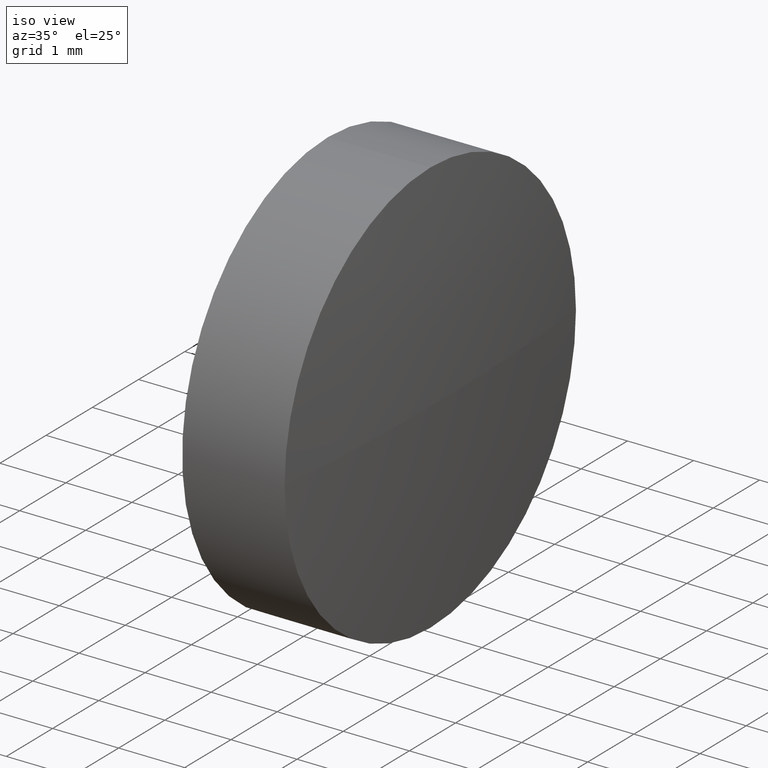
[diagram: clean part render]
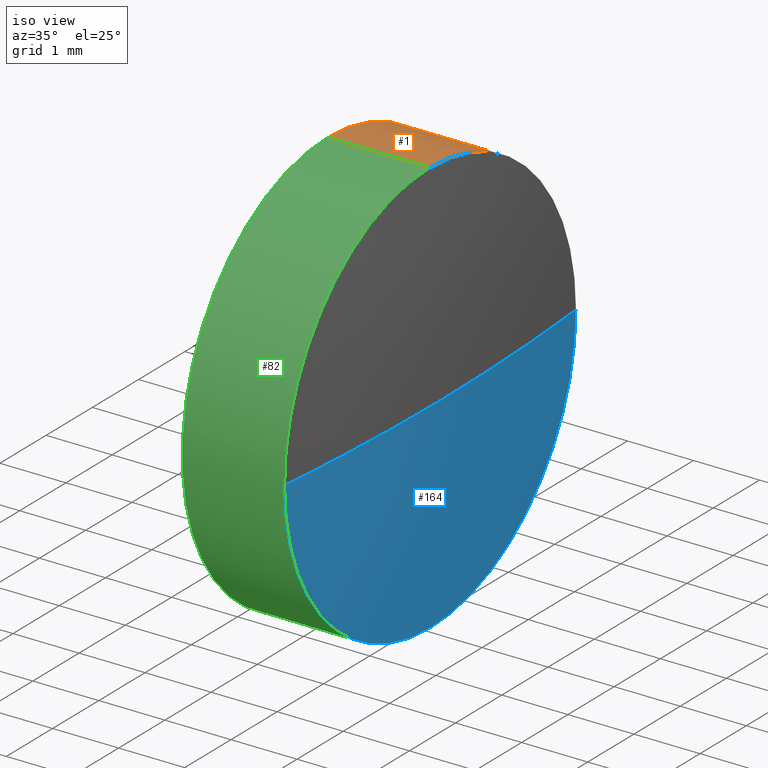
[diagram: same view with three faces highlighted in distinct colors, each labeled with its STEP entity id]
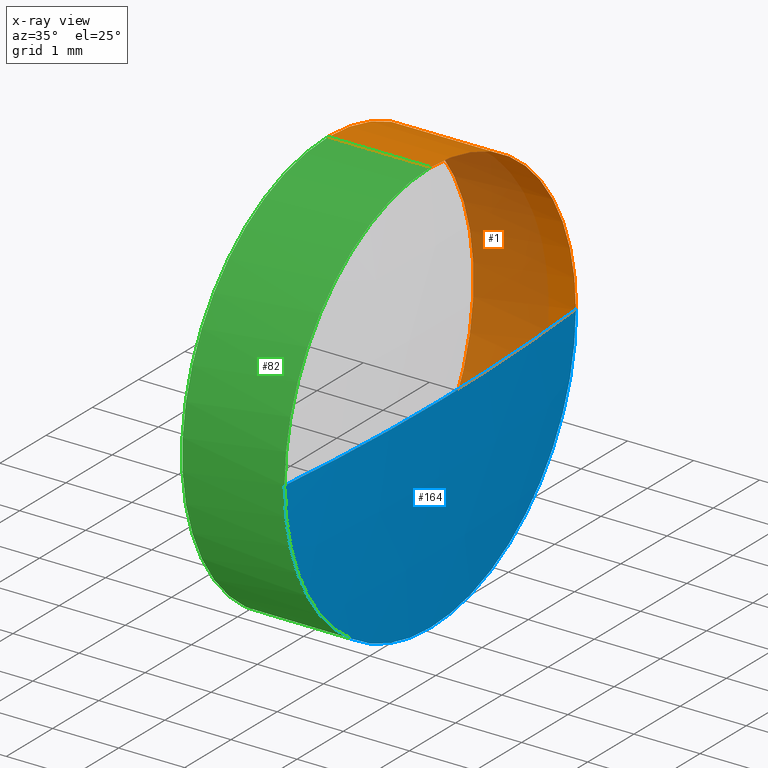
[diagram: x-ray of the same camera — body ghosted, the three highlighted faces saturated]
A machine part, iso view with three faces highlighted in distinct colors.
The next image is the same camera in x-ray (body ghosted, the three faces saturated) — at least one of them is partly hidden behind the body in this view.
Their STEP definitions:

[orange] entity #1 — the highlighted cylindrical surface (partial cylindrical patch) has radius 3.15 mm, axis along (-1, -0, -0).
#1 = ADVANCED_FACE ( 'NONE', ( #99 ), #119, .T. ) ;
#6 = DIRECTION ( 'NONE',  ( -1.000000000000000000, -0.0000000000000000000, -0.0000000000000000000 ) ) ;
#7 = DIRECTION ( 'NONE',  ( -1.000000000000000000, -0.0000000000000000000, -0.0000000000000000000 ) ) ;
#11 = EDGE_CURVE ( 'NONE', #18, #165, #87, .T. ) ;
#15 = EDGE_LOOP ( 'NONE', ( #143, #108, #184, #157, #67 ) ) ;
#16 = CARTESIAN_POINT ( 'NONE',  ( 1118.311526673283900, 408.8643062217863600, -3.149999999999986100 ) ) ;
#18 = VERTEX_POINT ( 'NONE', #19 ) ;
#19 = CARTESIAN_POINT ( 'NONE',  ( 1116.761526673283900, 408.8643062217863600, 3.149999999999986100 ) ) ;
#23 = DIRECTION ( 'NONE',  ( 0.0000000000000000000, 0.0000000000000000000, 1.000000000000000000 ) ) ;
#26 = VERTEX_POINT ( 'NONE', #16 ) ;
#27 = VECTOR ( 'NONE', #7, 1000.000000000000000 ) ;
#28 = EDGE_CURVE ( 'NONE', #96, #18, #72, .T. ) ;
#30 = CIRCLE ( 'NONE', #81, 3.149999999999986100 ) ;
#31 = EDGE_CURVE ( 'NONE', #96, #170, #152, .T. ) ;
#37 = VECTOR ( 'NONE', #6, 1000.000000000000000 ) ;
#50 = LINE ( 'NONE', #101, #27 ) ;
#51 = DIRECTION ( 'NONE',  ( 0.0000000000000000000, 0.0000000000000000000, 1.000000000000000000 ) ) ;
#53 = DIRECTION ( 'NONE',  ( 0.0000000000000000000, 0.0000000000000000000, 1.000000000000000000 ) ) ;
#66 = DIRECTION ( 'NONE',  ( -1.000000000000000000, -0.0000000000000000000, -0.0000000000000000000 ) ) ;
#67 = ORIENTED_EDGE ( 'NONE', *, *, #31, .T. ) ;
#72 = LINE ( 'NONE', #168, #37 ) ;
#81 = AXIS2_PLACEMENT_3D ( 'NONE', #172, #102, #23 ) ;
#83 = DIRECTION ( 'NONE',  ( -1.000000000000000000, -0.0000000000000000000, -0.0000000000000000000 ) ) ;
#87 = CIRCLE ( 'NONE', #93, 3.149999999999986100 ) ;
#93 = AXIS2_PLACEMENT_3D ( 'NONE', #136, #83, #123 ) ;
#96 = VERTEX_POINT ( 'NONE', #112 ) ;
#98 = CARTESIAN_POINT ( 'NONE',  ( 1116.271868689690100, 408.8643062217863600, 0.0000000000000000000 ) ) ;
#99 = FACE_OUTER_BOUND ( 'NONE', #15, .T. ) ;
#100 = EDGE_CURVE ( 'NONE', #170, #26, #30, .T. ) ;
#101 = CARTESIAN_POINT ( 'NONE',  ( 1116.271868689690100, 408.8643062217863600, -3.149999999999986100 ) ) ;
#102 = DIRECTION ( 'NONE',  ( -1.000000000000000000, -0.0000000000000000000, -0.0000000000000000000 ) ) ;
#108 = ORIENTED_EDGE ( 'NONE', *, *, #161, .T. ) ;
#110 = CARTESIAN_POINT ( 'NONE',  ( 1118.311526673283900, 412.0143062217863400, 0.0000000000000000000 ) ) ;
#112 = CARTESIAN_POINT ( 'NONE',  ( 1118.311526673283900, 408.8643062217863600, 3.149999999999986100 ) ) ;
#119 = CYLINDRICAL_SURFACE ( 'NONE', #169, 3.149999999999986100 ) ;
#121 = AXIS2_PLACEMENT_3D ( 'NONE', #171, #154, #53 ) ;
#123 = DIRECTION ( 'NONE',  ( 0.0000000000000000000, 0.0000000000000000000, 1.000000000000000000 ) ) ;
#136 = CARTESIAN_POINT ( 'NONE',  ( 1116.761526673283900, 408.8643062217863600, 0.0000000000000000000 ) ) ;
#143 = ORIENTED_EDGE ( 'NONE', *, *, #100, .T. ) ;
#152 = CIRCLE ( 'NONE', #121, 3.149999999999986100 ) ;
#154 = DIRECTION ( 'NONE',  ( -1.000000000000000000, -0.0000000000000000000, -0.0000000000000000000 ) ) ;
#157 = ORIENTED_EDGE ( 'NONE', *, *, #28, .F. ) ;
#161 = EDGE_CURVE ( 'NONE', #26, #165, #50, .T. ) ;
#165 = VERTEX_POINT ( 'NONE', #175 ) ;
#168 = CARTESIAN_POINT ( 'NONE',  ( 1116.271868689690100, 408.8643062217863600, 3.149999999999986100 ) ) ;
#169 = AXIS2_PLACEMENT_3D ( 'NONE', #98, #66, #51 ) ;
#170 = VERTEX_POINT ( 'NONE', #110 ) ;
#171 = CARTESIAN_POINT ( 'NONE',  ( 1118.311526673283900, 408.8643062217863600, 0.0000000000000000000 ) ) ;
#172 = CARTESIAN_POINT ( 'NONE',  ( 1118.311526673283900, 408.8643062217863600, 0.0000000000000000000 ) ) ;
#175 = CARTESIAN_POINT ( 'NONE',  ( 1116.761526673283900, 408.8643062217863600, -3.149999999999986100 ) ) ;
#184 = ORIENTED_EDGE ( 'NONE', *, *, #11, .F. ) ;

[blue] entity #164 — the highlighted spherical surface has radius 33.15 mm.
#14 = EDGE_CURVE ( 'NONE', #114, #170, #78, .T. ) ;
#16 = CARTESIAN_POINT ( 'NONE',  ( 1118.311526673283900, 408.8643062217863600, -3.149999999999986100 ) ) ;
#20 = DIRECTION ( 'NONE',  ( 0.0000000000000000000, 1.000000000000000000, 0.0000000000000000000 ) ) ;
#22 = CARTESIAN_POINT ( 'NONE',  ( 1085.311526673284300, 408.8643062217854500, 0.0000000000000000000 ) ) ;
#23 = DIRECTION ( 'NONE',  ( 0.0000000000000000000, 0.0000000000000000000, 1.000000000000000000 ) ) ;
#26 = VERTEX_POINT ( 'NONE', #16 ) ;
#30 = CIRCLE ( 'NONE', #81, 3.149999999999986100 ) ;
#34 = DIRECTION ( 'NONE',  ( -0.0000000000000000000, 0.0000000000000000000, 1.000000000000000000 ) ) ;
#38 = DIRECTION ( 'NONE',  ( 0.0000000000000000000, 1.224646799147353200E-016, -1.000000000000000000 ) ) ;
#47 = AXIS2_PLACEMENT_3D ( 'NONE', #65, #34, #109 ) ;
#56 = CARTESIAN_POINT ( 'NONE',  ( 1085.311526673284300, 408.8643062217854500, 0.0000000000000000000 ) ) ;
#63 = ORIENTED_EDGE ( 'NONE', *, *, #14, .F. ) ;
#65 = CARTESIAN_POINT ( 'NONE',  ( 1085.311526673284300, 408.8643062217854500, 0.0000000000000000000 ) ) ;
#68 = AXIS2_PLACEMENT_3D ( 'NONE', #138, #111, #139 ) ;
#69 = CARTESIAN_POINT ( 'NONE',  ( 1118.461526673284000, 408.8643062217854500, 0.0000000000000000000 ) ) ;
#78 = CIRCLE ( 'NONE', #47, 33.14999999999979300 ) ;
#79 = EDGE_LOOP ( 'NONE', ( #63, #162, #150, #106 ) ) ;
#81 = AXIS2_PLACEMENT_3D ( 'NONE', #172, #102, #23 ) ;
#89 = VERTEX_POINT ( 'NONE', #113 ) ;
#95 = AXIS2_PLACEMENT_3D ( 'NONE', #56, #156, #20 ) ;
#100 = EDGE_CURVE ( 'NONE', #170, #26, #30, .T. ) ;
#102 = DIRECTION ( 'NONE',  ( -1.000000000000000000, -0.0000000000000000000, -0.0000000000000000000 ) ) ;
#103 = SPHERICAL_SURFACE ( 'NONE', #95, 33.14999999999979300 ) ;
#106 = ORIENTED_EDGE ( 'NONE', *, *, #100, .F. ) ;
#109 = DIRECTION ( 'NONE',  ( 1.000000000000000000, 0.0000000000000000000, 0.0000000000000000000 ) ) ;
#110 = CARTESIAN_POINT ( 'NONE',  ( 1118.311526673283900, 412.0143062217863400, 0.0000000000000000000 ) ) ;
#111 = DIRECTION ( 'NONE',  ( -1.000000000000000000, -0.0000000000000000000, -0.0000000000000000000 ) ) ;
#113 = CARTESIAN_POINT ( 'NONE',  ( 1118.311526673283900, 405.7143062217853600, -3.857637417314164200E-016 ) ) ;
#114 = VERTEX_POINT ( 'NONE', #69 ) ;
#131 = CIRCLE ( 'NONE', #147, 33.14999999999979300 ) ;
#137 = EDGE_CURVE ( 'NONE', #114, #89, #131, .T. ) ;
#138 = CARTESIAN_POINT ( 'NONE',  ( 1118.311526673283900, 408.8643062217863600, 0.0000000000000000000 ) ) ;
#139 = DIRECTION ( 'NONE',  ( 0.0000000000000000000, 0.0000000000000000000, 1.000000000000000000 ) ) ;
#142 = CIRCLE ( 'NONE', #68, 3.149999999999986100 ) ;
#145 = DIRECTION ( 'NONE',  ( 0.0000000000000000000, 1.000000000000000000, 1.224646799147353200E-016 ) ) ;
#147 = AXIS2_PLACEMENT_3D ( 'NONE', #22, #38, #145 ) ;
#150 = ORIENTED_EDGE ( 'NONE', *, *, #174, .F. ) ;
#156 = DIRECTION ( 'NONE',  ( -0.0000000000000000000, 0.0000000000000000000, -1.000000000000000000 ) ) ;
#162 = ORIENTED_EDGE ( 'NONE', *, *, #137, .T. ) ;
#164 = ADVANCED_FACE ( 'NONE', ( #182 ), #103, .T. ) ;
#170 = VERTEX_POINT ( 'NONE', #110 ) ;
#172 = CARTESIAN_POINT ( 'NONE',  ( 1118.311526673283900, 408.8643062217863600, 0.0000000000000000000 ) ) ;
#174 = EDGE_CURVE ( 'NONE', #26, #89, #142, .T. ) ;
#182 = FACE_OUTER_BOUND ( 'NONE', #79, .T. ) ;

[green] entity #82 — the highlighted cylindrical surface (partial cylindrical patch) has radius 3.15 mm, axis along (-1, -0, -0).
#6 = DIRECTION ( 'NONE',  ( -1.000000000000000000, -0.0000000000000000000, -0.0000000000000000000 ) ) ;
#7 = DIRECTION ( 'NONE',  ( -1.000000000000000000, -0.0000000000000000000, -0.0000000000000000000 ) ) ;
#10 = DIRECTION ( 'NONE',  ( -1.000000000000000000, -0.0000000000000000000, -0.0000000000000000000 ) ) ;
#16 = CARTESIAN_POINT ( 'NONE',  ( 1118.311526673283900, 408.8643062217863600, -3.149999999999986100 ) ) ;
#18 = VERTEX_POINT ( 'NONE', #19 ) ;
#19 = CARTESIAN_POINT ( 'NONE',  ( 1116.761526673283900, 408.8643062217863600, 3.149999999999986100 ) ) ;
#24 = FACE_OUTER_BOUND ( 'NONE', #45, .T. ) ;
#26 = VERTEX_POINT ( 'NONE', #16 ) ;
#27 = VECTOR ( 'NONE', #7, 1000.000000000000000 ) ;
#28 = EDGE_CURVE ( 'NONE', #96, #18, #72, .T. ) ;
#33 = ORIENTED_EDGE ( 'NONE', *, *, #64, .F. ) ;
#37 = VECTOR ( 'NONE', #6, 1000.000000000000000 ) ;
#39 = ORIENTED_EDGE ( 'NONE', *, *, #174, .T. ) ;
#45 = EDGE_LOOP ( 'NONE', ( #73, #39, #48, #146, #33 ) ) ;
#48 = ORIENTED_EDGE ( 'NONE', *, *, #186, .T. ) ;
#50 = LINE ( 'NONE', #101, #27 ) ;
#55 = DIRECTION ( 'NONE',  ( -1.000000000000000000, -0.0000000000000000000, -0.0000000000000000000 ) ) ;
#57 = DIRECTION ( 'NONE',  ( -1.000000000000000000, -0.0000000000000000000, -0.0000000000000000000 ) ) ;
#62 = CIRCLE ( 'NONE', #153, 3.149999999999986100 ) ;
#64 = EDGE_CURVE ( 'NONE', #165, #18, #120, .T. ) ;
#68 = AXIS2_PLACEMENT_3D ( 'NONE', #138, #111, #139 ) ;
#71 = CARTESIAN_POINT ( 'NONE',  ( 1118.311526673283900, 408.8643062217863600, 0.0000000000000000000 ) ) ;
#72 = LINE ( 'NONE', #168, #37 ) ;
#73 = ORIENTED_EDGE ( 'NONE', *, *, #161, .F. ) ;
#74 = AXIS2_PLACEMENT_3D ( 'NONE', #183, #10, #85 ) ;
#75 = DIRECTION ( 'NONE',  ( 0.0000000000000000000, 0.0000000000000000000, 1.000000000000000000 ) ) ;
#82 = ADVANCED_FACE ( 'NONE', ( #24 ), #185, .T. ) ;
#85 = DIRECTION ( 'NONE',  ( 0.0000000000000000000, 0.0000000000000000000, 1.000000000000000000 ) ) ;
#89 = VERTEX_POINT ( 'NONE', #113 ) ;
#96 = VERTEX_POINT ( 'NONE', #112 ) ;
#101 = CARTESIAN_POINT ( 'NONE',  ( 1116.271868689690100, 408.8643062217863600, -3.149999999999986100 ) ) ;
#111 = DIRECTION ( 'NONE',  ( -1.000000000000000000, -0.0000000000000000000, -0.0000000000000000000 ) ) ;
#112 = CARTESIAN_POINT ( 'NONE',  ( 1118.311526673283900, 408.8643062217863600, 3.149999999999986100 ) ) ;
#113 = CARTESIAN_POINT ( 'NONE',  ( 1118.311526673283900, 405.7143062217853600, -3.857637417314164200E-016 ) ) ;
#120 = CIRCLE ( 'NONE', #74, 3.149999999999986100 ) ;
#127 = CARTESIAN_POINT ( 'NONE',  ( 1116.271868689690100, 408.8643062217863600, 0.0000000000000000000 ) ) ;
#134 = AXIS2_PLACEMENT_3D ( 'NONE', #127, #55, #151 ) ;
#138 = CARTESIAN_POINT ( 'NONE',  ( 1118.311526673283900, 408.8643062217863600, 0.0000000000000000000 ) ) ;
#139 = DIRECTION ( 'NONE',  ( 0.0000000000000000000, 0.0000000000000000000, 1.000000000000000000 ) ) ;
#142 = CIRCLE ( 'NONE', #68, 3.149999999999986100 ) ;
#146 = ORIENTED_EDGE ( 'NONE', *, *, #28, .T. ) ;
#151 = DIRECTION ( 'NONE',  ( 0.0000000000000000000, 0.0000000000000000000, 1.000000000000000000 ) ) ;
#153 = AXIS2_PLACEMENT_3D ( 'NONE', #71, #57, #75 ) ;
#161 = EDGE_CURVE ( 'NONE', #26, #165, #50, .T. ) ;
#165 = VERTEX_POINT ( 'NONE', #175 ) ;
#168 = CARTESIAN_POINT ( 'NONE',  ( 1116.271868689690100, 408.8643062217863600, 3.149999999999986100 ) ) ;
#174 = EDGE_CURVE ( 'NONE', #26, #89, #142, .T. ) ;
#175 = CARTESIAN_POINT ( 'NONE',  ( 1116.761526673283900, 408.8643062217863600, -3.149999999999986100 ) ) ;
#183 = CARTESIAN_POINT ( 'NONE',  ( 1116.761526673283900, 408.8643062217863600, 0.0000000000000000000 ) ) ;
#185 = CYLINDRICAL_SURFACE ( 'NONE', #134, 3.149999999999986100 ) ;
#186 = EDGE_CURVE ( 'NONE', #89, #96, #62, .T. ) ;